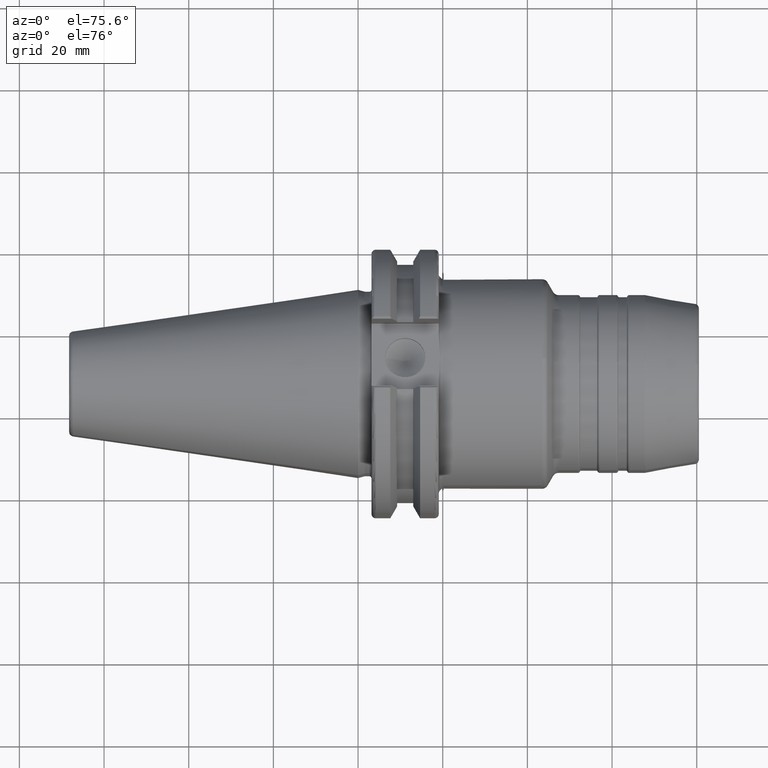
[diagram: clean part render]
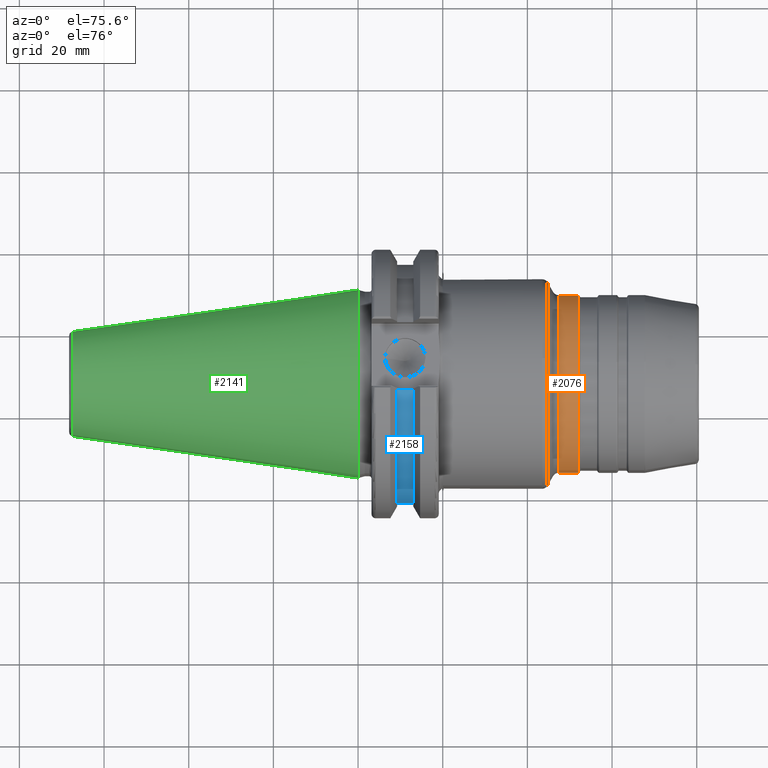
[diagram: same view with three faces highlighted in distinct colors, each labeled with its STEP entity id]
A machine part, auxiliary view with three faces highlighted in distinct colors.
Their STEP definitions:

[orange] entity #2076 — the highlighted cylindrical surface (bore or boss wall) has radius 21 mm, axis along (1, 0, 0).
#179=FACE_OUTER_BOUND('',#288,.T.);
#288=EDGE_LOOP('',(#1426,#1427,#1428,#1429,#1430,#1431,#1432,#1433));
#402=LINE('',#3312,#496);
#496=VECTOR('',#2616,21.);
#616=CIRCLE('',#2233,21.);
#617=CIRCLE('',#2234,21.);
#618=CIRCLE('',#2235,21.);
#624=CIRCLE('',#2243,21.);
#625=CIRCLE('',#2244,21.);
#626=CIRCLE('',#2245,21.);
#796=VERTEX_POINT('',#3288);
#797=VERTEX_POINT('',#3290);
#798=VERTEX_POINT('',#3292);
#803=VERTEX_POINT('',#3307);
#804=VERTEX_POINT('',#3308);
#805=VERTEX_POINT('',#3310);
#1046=EDGE_CURVE('',#796,#797,#616,.T.);
#1047=EDGE_CURVE('',#797,#798,#617,.T.);
#1048=EDGE_CURVE('',#798,#796,#618,.T.);
#1055=EDGE_CURVE('',#803,#804,#624,.T.);
#1056=EDGE_CURVE('',#805,#803,#625,.T.);
#1057=EDGE_CURVE('',#805,#798,#402,.T.);
#1058=EDGE_CURVE('',#804,#805,#626,.T.);
#1426=ORIENTED_EDGE('',*,*,#1055,.F.);
#1427=ORIENTED_EDGE('',*,*,#1056,.F.);
#1428=ORIENTED_EDGE('',*,*,#1057,.T.);
#1429=ORIENTED_EDGE('',*,*,#1047,.F.);
#1430=ORIENTED_EDGE('',*,*,#1046,.F.);
#1431=ORIENTED_EDGE('',*,*,#1048,.F.);
#1432=ORIENTED_EDGE('',*,*,#1057,.F.);
#1433=ORIENTED_EDGE('',*,*,#1058,.F.);
#2033=CYLINDRICAL_SURFACE('',#2242,21.);
#2076=ADVANCED_FACE('',(#179),#2033,.T.);
#2233=AXIS2_PLACEMENT_3D('',#3291,#2591,#2592);
#2234=AXIS2_PLACEMENT_3D('',#3293,#2593,#2594);
#2235=AXIS2_PLACEMENT_3D('',#3294,#2595,#2596);
#2242=AXIS2_PLACEMENT_3D('',#3306,#2610,#2611);
#2243=AXIS2_PLACEMENT_3D('',#3309,#2612,#2613);
#2244=AXIS2_PLACEMENT_3D('',#3311,#2614,#2615);
#2245=AXIS2_PLACEMENT_3D('',#3313,#2617,#2618);
#2591=DIRECTION('center_axis',(-1.,0.,0.));
#2592=DIRECTION('ref_axis',(0.,-1.,1.83697019872103E-16));
#2593=DIRECTION('center_axis',(-1.,0.,0.));
#2594=DIRECTION('ref_axis',(0.,-1.,1.83697019872103E-16));
#2595=DIRECTION('center_axis',(-1.,0.,0.));
#2596=DIRECTION('ref_axis',(0.,-1.,1.83697019872103E-16));
#2610=DIRECTION('center_axis',(1.,0.,0.));
#2611=DIRECTION('ref_axis',(0.,1.,0.));
#2612=DIRECTION('center_axis',(1.,0.,0.));
#2613=DIRECTION('ref_axis',(0.,-1.,1.83697019872103E-16));
#2614=DIRECTION('center_axis',(1.,0.,0.));
#2615=DIRECTION('ref_axis',(0.,-1.,1.83697019872103E-16));
#2616=DIRECTION('',(-1.,0.,0.));
#2617=DIRECTION('center_axis',(1.,0.,0.));
#2618=DIRECTION('ref_axis',(0.,-1.,1.83697019872103E-16));
#3288=CARTESIAN_POINT('',(47.3660254037844,-2.57175827820944E-15,21.));
#3290=CARTESIAN_POINT('',(47.3660254037844,21.,-6.4293956955236E-15));
#3291=CARTESIAN_POINT('Origin',(47.3660254037844,0.,0.));
#3292=CARTESIAN_POINT('',(47.3660254037844,-21.,-2.57175827820944E-15));
#3293=CARTESIAN_POINT('Origin',(47.3660254037844,0.,0.));
#3294=CARTESIAN_POINT('Origin',(47.3660254037844,0.,0.));
#3306=CARTESIAN_POINT('Origin',(49.3556624327026,0.,0.));
#3307=CARTESIAN_POINT('',(51.9803847577293,21.,-1.28587913910472E-15));
#3308=CARTESIAN_POINT('',(51.9803847577293,-2.57175827820944E-15,21.));
#3309=CARTESIAN_POINT('Origin',(51.9803847577293,0.,0.));
#3310=CARTESIAN_POINT('',(51.9803847577293,-21.,-2.57175827820944E-15));
#3311=CARTESIAN_POINT('Origin',(51.9803847577293,0.,0.));
#3312=CARTESIAN_POINT('',(49.3556624327026,-21.,-2.57175827820944E-15));
#3313=CARTESIAN_POINT('Origin',(51.9803847577293,0.,0.));

[blue] entity #2158 — the highlighted cylindrical surface (partial cylindrical patch) has radius 28.15 mm, axis along (1, 0, 0).
#261=FACE_OUTER_BOUND('',#382,.T.);
#382=EDGE_LOOP('',(#1966,#1967,#1968,#1969));
#460=LINE('',#3999,#554);
#465=LINE('',#4017,#559);
#554=VECTOR('',#3040,10.);
#559=VECTOR('',#3047,10.);
#757=CIRCLE('',#2478,28.15);
#758=CIRCLE('',#2479,28.15);
#962=VERTEX_POINT('',#3996);
#963=VERTEX_POINT('',#3998);
#968=VERTEX_POINT('',#4014);
#969=VERTEX_POINT('',#4016);
#1269=EDGE_CURVE('',#963,#962,#460,.T.);
#1276=EDGE_CURVE('',#969,#968,#465,.T.);
#1337=EDGE_CURVE('',#963,#968,#757,.T.);
#1338=EDGE_CURVE('',#962,#969,#758,.T.);
#1966=ORIENTED_EDGE('',*,*,#1276,.T.);
#1967=ORIENTED_EDGE('',*,*,#1337,.F.);
#1968=ORIENTED_EDGE('',*,*,#1269,.T.);
#1969=ORIENTED_EDGE('',*,*,#1338,.T.);
#2062=CYLINDRICAL_SURFACE('',#2477,28.15);
#2158=ADVANCED_FACE('',(#261),#2062,.T.);
#2477=AXIS2_PLACEMENT_3D('',#4196,#3165,#3166);
#2478=AXIS2_PLACEMENT_3D('',#4197,#3167,#3168);
#2479=AXIS2_PLACEMENT_3D('',#4198,#3169,#3170);
#3040=DIRECTION('',(-1.,0.,0.));
#3047=DIRECTION('',(1.,0.,0.));
#3165=DIRECTION('center_axis',(1.,0.,0.));
#3166=DIRECTION('ref_axis',(0.,-1.,-1.22464679914735E-16));
#3167=DIRECTION('center_axis',(1.,0.,0.));
#3168=DIRECTION('ref_axis',(0.,0.,-1.));
#3169=DIRECTION('center_axis',(1.,0.,0.));
#3170=DIRECTION('ref_axis',(0.,0.,-1.));
#3996=CARTESIAN_POINT('',(9.2191,-8.19,26.932255754021));
#3998=CARTESIAN_POINT('',(13.0491,-8.19,26.932255754021));
#3999=CARTESIAN_POINT('',(11.1341,-8.19,26.932255754021));
#4014=CARTESIAN_POINT('',(13.0491,-8.19,-26.932255754021));
#4016=CARTESIAN_POINT('',(9.2191,-8.19,-26.932255754021));
#4017=CARTESIAN_POINT('',(11.1341,-8.19,-26.932255754021));
#4196=CARTESIAN_POINT('Origin',(11.1341,0.,0.));
#4197=CARTESIAN_POINT('Origin',(13.0491,0.,0.));
#4198=CARTESIAN_POINT('Origin',(9.2191,0.,0.));

[green] entity #2141 — the highlighted conical surface has half-angle 8.297 deg.
#89=CONICAL_SURFACE('',#2448,17.2484375,0.144812498238939);
#244=FACE_OUTER_BOUND('',#365,.T.);
#365=EDGE_LOOP('',(#1883,#1884,#1885,#1886,#1887,#1888,#1889));
#472=LINE('',#4122,#566);
#566=VECTOR('',#3098,17.2484375);
#737=CIRCLE('',#2439,12.3966635780937);
#738=CIRCLE('',#2440,12.3966635780937);
#742=CIRCLE('',#2444,12.3966635780937);
#745=CIRCLE('',#2449,22.225);
#746=CIRCLE('',#2450,22.225);
#981=VERTEX_POINT('',#4101);
#982=VERTEX_POINT('',#4102);
#983=VERTEX_POINT('',#4104);
#988=VERTEX_POINT('',#4118);
#989=VERTEX_POINT('',#4119);
#1296=EDGE_CURVE('',#981,#982,#737,.T.);
#1297=EDGE_CURVE('',#982,#983,#738,.T.);
#1301=EDGE_CURVE('',#983,#981,#742,.T.);
#1304=EDGE_CURVE('',#988,#989,#745,.T.);
#1305=EDGE_CURVE('',#989,#988,#746,.T.);
#1306=EDGE_CURVE('',#989,#982,#472,.T.);
#1883=ORIENTED_EDGE('',*,*,#1304,.F.);
#1884=ORIENTED_EDGE('',*,*,#1305,.F.);
#1885=ORIENTED_EDGE('',*,*,#1306,.T.);
#1886=ORIENTED_EDGE('',*,*,#1296,.F.);
#1887=ORIENTED_EDGE('',*,*,#1301,.F.);
#1888=ORIENTED_EDGE('',*,*,#1297,.F.);
#1889=ORIENTED_EDGE('',*,*,#1306,.F.);
#2141=ADVANCED_FACE('',(#244),#89,.T.);
#2439=AXIS2_PLACEMENT_3D('',#4103,#3074,#3075);
#2440=AXIS2_PLACEMENT_3D('',#4105,#3076,#3077);
#2444=AXIS2_PLACEMENT_3D('',#4111,#3084,#3085);
#2448=AXIS2_PLACEMENT_3D('',#4117,#3092,#3093);
#2449=AXIS2_PLACEMENT_3D('',#4120,#3094,#3095);
#2450=AXIS2_PLACEMENT_3D('',#4121,#3096,#3097);
#3074=DIRECTION('center_axis',(-1.,0.,0.));
#3075=DIRECTION('ref_axis',(0.,-1.,3.06161699786838E-17));
#3076=DIRECTION('center_axis',(-1.,0.,0.));
#3077=DIRECTION('ref_axis',(0.,-1.,3.06161699786838E-17));
#3084=DIRECTION('center_axis',(-1.,0.,0.));
#3085=DIRECTION('ref_axis',(0.,-1.,3.06161699786838E-17));
#3092=DIRECTION('center_axis',(1.,0.,0.));
#3093=DIRECTION('ref_axis',(0.,1.,0.));
#3094=DIRECTION('center_axis',(1.,0.,0.));
#3095=DIRECTION('ref_axis',(0.,0.,-1.));
#3096=DIRECTION('center_axis',(1.,0.,0.));
#3097=DIRECTION('ref_axis',(0.,0.,-1.));
#3098=DIRECTION('',(-0.989532981063282,0.144306893071729,1.76724974695192E-17));
#4101=CARTESIAN_POINT('',(-67.3943068930717,12.3966635780937,-3.79538359275475E-15));
#4102=CARTESIAN_POINT('',(-67.3943068930718,-12.3966635780937,-1.5181534371019E-15));
#4103=CARTESIAN_POINT('Origin',(-67.3943068930717,0.,-1.89769179637738E-15));
#4104=CARTESIAN_POINT('',(-67.3943068930717,-1.5181534371019E-15,12.3966635780937));
#4105=CARTESIAN_POINT('Origin',(-67.3943068930717,0.,-1.89769179637738E-15));
#4111=CARTESIAN_POINT('Origin',(-67.3943068930717,0.,-1.89769179637738E-15));
#4117=CARTESIAN_POINT('Origin',(-34.125,0.,0.));
#4118=CARTESIAN_POINT('',(0.,22.225,0.));
#4119=CARTESIAN_POINT('',(0.,-22.225,-2.72177751110499E-15));
#4120=CARTESIAN_POINT('Origin',(0.,0.,0.));
#4121=CARTESIAN_POINT('Origin',(0.,0.,0.));
#4122=CARTESIAN_POINT('',(-34.125,-17.2484375,-2.11232437746682E-15));